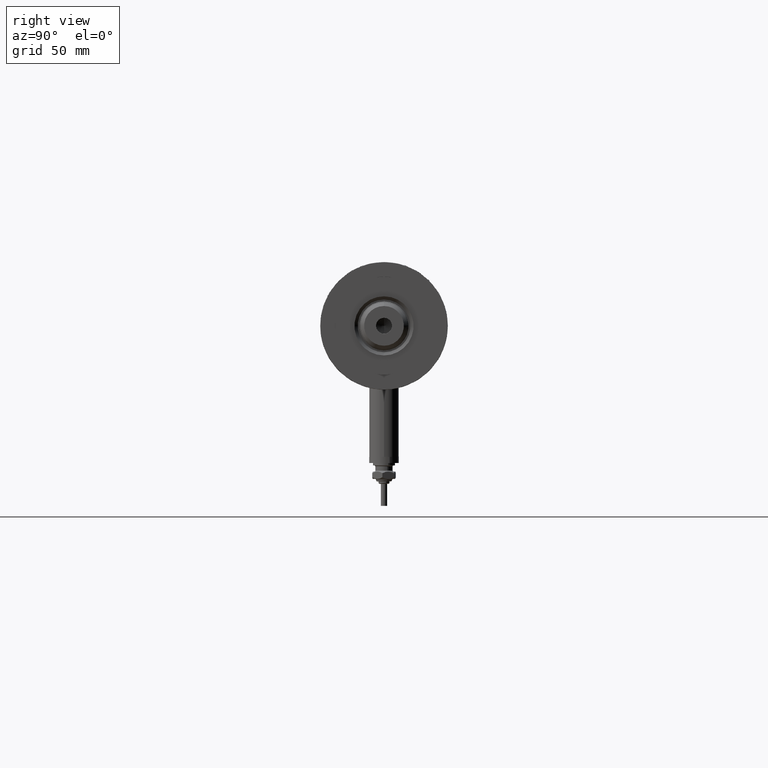
[diagram: clean part render]
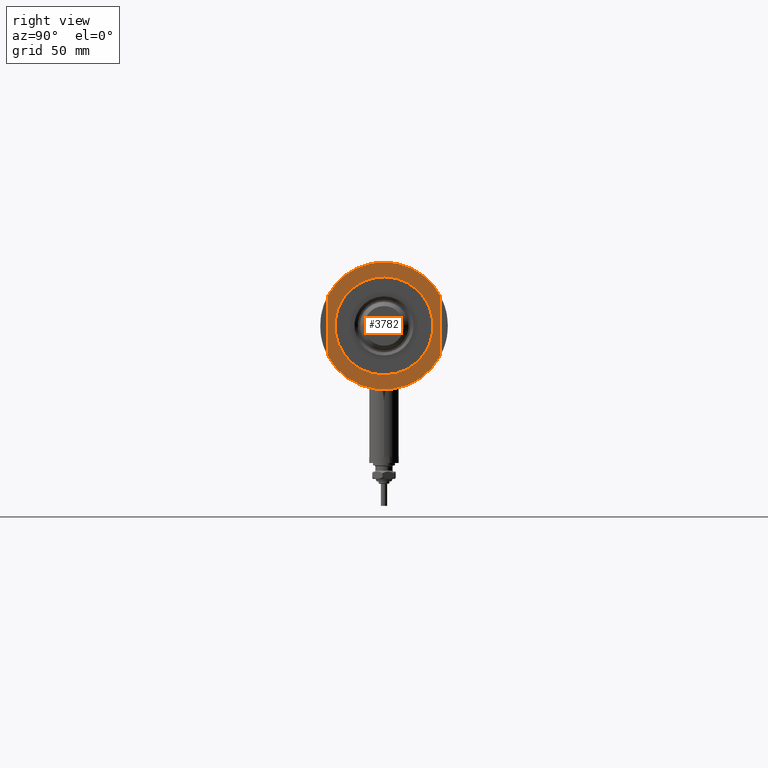
[diagram: same view with one face highlighted and labeled with its STEP entity id]
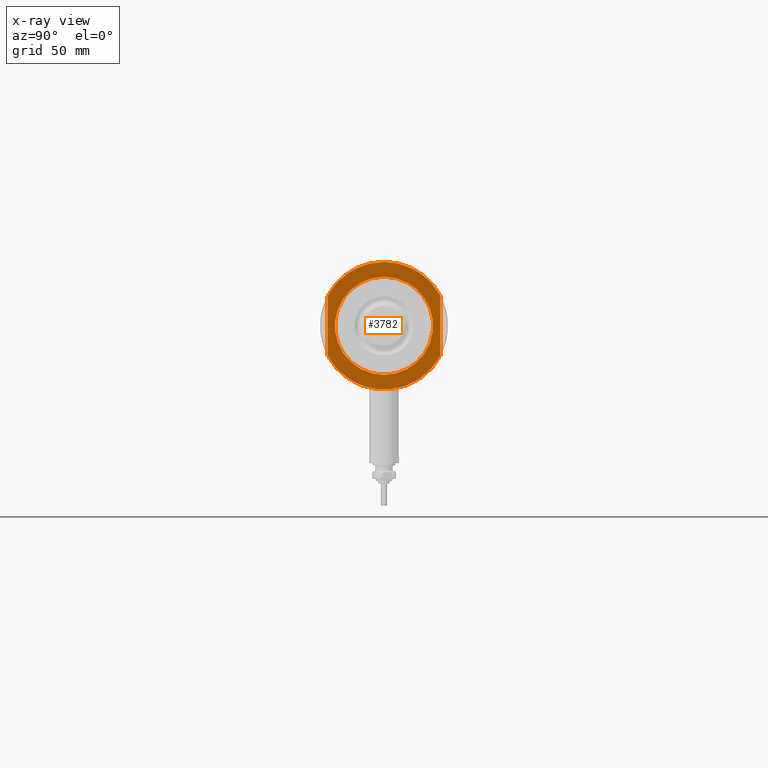
[diagram: x-ray of the same camera — body ghosted, the highlighted face saturated]
A machine part, right view. The second image highlights one B-rep face of the part: STEP entity #3782.
The next image is the same camera in x-ray: the body ghosted, the highlighted face saturated — about 0% of this face is hidden behind the body in this view.
In plain terms, the highlighted planar face has unit normal (1, 0, -0).
Its self-contained STEP definition (entity closure, byte-faithful):
#70 = DIRECTION ( 'NONE',  ( 0.000000000000000000, 0.000000000000000000, 1.000000000000000000 ) ) ;
#148 = AXIS2_PLACEMENT_3D ( 'NONE', #6233, #1840, #4787 ) ;
#535 = EDGE_LOOP ( 'NONE', ( #5057, #1143, #2914, #3333, #3971 ) ) ;
#577 = FACE_BOUND ( 'NONE', #3600, .T. ) ;
#750 = LINE ( 'NONE', #6057, #5325 ) ;
#935 = EDGE_CURVE ( 'NONE', #2356, #5743, #750, .T. ) ;
#996 = AXIS2_PLACEMENT_3D ( 'NONE', #1892, #4804, #5413 ) ;
#1053 = EDGE_CURVE ( 'NONE', #6268, #1194, #1349, .T. ) ;
#1124 = EDGE_CURVE ( 'NONE', #5229, #2757, #6042, .T. ) ;
#1143 = ORIENTED_EDGE ( 'NONE', *, *, #4327, .T. ) ;
#1149 = CARTESIAN_POINT ( 'NONE',  ( -12.12435565298214613, 23.00000000000000355, 15.50000000000000000 ) ) ;
#1194 = VERTEX_POINT ( 'NONE', #5869 ) ;
#1250 = AXIS2_PLACEMENT_3D ( 'NONE', #1822, #3773, #2393 ) ;
#1258 = VERTEX_POINT ( 'NONE', #4528 ) ;
#1349 = CIRCLE ( 'NONE', #1250, 26.00000000000000355 ) ;
#1429 = CARTESIAN_POINT ( 'NONE',  ( -12.12435565298215145, 23.00000000000000355, 15.50000000000000000 ) ) ;
#1458 = DIRECTION ( 'NONE',  ( 0.000000000000000000, 0.000000000000000000, 1.000000000000000000 ) ) ;
#1625 = EDGE_CURVE ( 'NONE', #1194, #5743, #2168, .T. ) ;
#1822 = CARTESIAN_POINT ( 'NONE',  ( 0.000000000000000000, 0.000000000000000000, 15.50000000000000000 ) ) ;
#1840 = DIRECTION ( 'NONE',  ( -0.000000000000000000, -0.000000000000000000, -1.000000000000000000 ) ) ;
#1852 = CARTESIAN_POINT ( 'NONE',  ( -20.00000000000000000, 2.449293598294706513E-15, 15.50000000000000000 ) ) ;
#1866 = CARTESIAN_POINT ( 'NONE',  ( 0.000000000000000000, 0.000000000000000000, 15.50000000000000000 ) ) ;
#1892 = CARTESIAN_POINT ( 'NONE',  ( 0.000000000000000000, 0.000000000000000000, 15.50000000000000000 ) ) ;
#1965 = DIRECTION ( 'NONE',  ( 1.000000000000000000, 0.000000000000000000, 0.000000000000000000 ) ) ;
#2136 = CARTESIAN_POINT ( 'NONE',  ( 0.000000000000000000, 0.000000000000000000, 15.50000000000000000 ) ) ;
#2158 = VECTOR ( 'NONE', #4270, 1000.000000000000000 ) ;
#2168 = CIRCLE ( 'NONE', #2671, 26.00000000000000355 ) ;
#2356 = VERTEX_POINT ( 'NONE', #3245 ) ;
#2393 = DIRECTION ( 'NONE',  ( 1.000000000000000000, 0.000000000000000000, 0.000000000000000000 ) ) ;
#2488 = EDGE_CURVE ( 'NONE', #2757, #5229, #4941, .T. ) ;
#2503 = DIRECTION ( 'NONE',  ( -0.000000000000000000, -0.000000000000000000, -1.000000000000000000 ) ) ;
#2671 = AXIS2_PLACEMENT_3D ( 'NONE', #1866, #1458, #6287 ) ;
#2757 = VERTEX_POINT ( 'NONE', #5236 ) ;
#2914 = ORIENTED_EDGE ( 'NONE', *, *, #6171, .F. ) ;
#3245 = CARTESIAN_POINT ( 'NONE',  ( 12.12435565298215323, -22.99999999999999645, 15.50000000000000000 ) ) ;
#3304 = LINE ( 'NONE', #1429, #2158 ) ;
#3333 = ORIENTED_EDGE ( 'NONE', *, *, #1053, .T. ) ;
#3451 = ORIENTED_EDGE ( 'NONE', *, *, #1124, .T. ) ;
#3546 = FACE_OUTER_BOUND ( 'NONE', #535, .T. ) ;
#3600 = EDGE_LOOP ( 'NONE', ( #5555, #3451 ) ) ;
#3744 = CIRCLE ( 'NONE', #996, 26.00000000000000355 ) ;
#3773 = DIRECTION ( 'NONE',  ( 0.000000000000000000, 0.000000000000000000, 1.000000000000000000 ) ) ;
#3782 = ADVANCED_FACE ( 'NONE', ( #577, #3546 ), #4924, .T. ) ;
#3971 = ORIENTED_EDGE ( 'NONE', *, *, #1625, .T. ) ;
#4133 = DIRECTION ( 'NONE',  ( -1.000000000000000000, -0.000000000000000000, -0.000000000000000000 ) ) ;
#4270 = DIRECTION ( 'NONE',  ( 1.000000000000000000, 0.000000000000000000, 0.000000000000000000 ) ) ;
#4327 = EDGE_CURVE ( 'NONE', #2356, #1258, #3744, .T. ) ;
#4504 = DIRECTION ( 'NONE',  ( 1.000000000000000000, 0.000000000000000000, -0.000000000000000000 ) ) ;
#4528 = CARTESIAN_POINT ( 'NONE',  ( 12.12435565298214790, 23.00000000000000355, 15.50000000000000000 ) ) ;
#4787 = DIRECTION ( 'NONE',  ( 1.000000000000000000, 0.000000000000000000, 0.000000000000000000 ) ) ;
#4804 = DIRECTION ( 'NONE',  ( 0.000000000000000000, 0.000000000000000000, 1.000000000000000000 ) ) ;
#4924 = PLANE ( 'NONE',  #5886 ) ;
#4941 = CIRCLE ( 'NONE', #148, 20.00000000000000000 ) ;
#5057 = ORIENTED_EDGE ( 'NONE', *, *, #935, .F. ) ;
#5229 = VERTEX_POINT ( 'NONE', #1852 ) ;
#5236 = CARTESIAN_POINT ( 'NONE',  ( 20.00000000000000000, 0.000000000000000000, 15.50000000000000000 ) ) ;
#5325 = VECTOR ( 'NONE', #4133, 1000.000000000000000 ) ;
#5367 = CARTESIAN_POINT ( 'NONE',  ( -12.12435565298215323, -22.99999999999999645, 15.50000000000000000 ) ) ;
#5413 = DIRECTION ( 'NONE',  ( 1.000000000000000000, 0.000000000000000000, 0.000000000000000000 ) ) ;
#5555 = ORIENTED_EDGE ( 'NONE', *, *, #2488, .T. ) ;
#5734 = AXIS2_PLACEMENT_3D ( 'NONE', #5776, #2503, #1965 ) ;
#5743 = VERTEX_POINT ( 'NONE', #5367 ) ;
#5776 = CARTESIAN_POINT ( 'NONE',  ( 0.000000000000000000, 0.000000000000000000, 15.50000000000000000 ) ) ;
#5869 = CARTESIAN_POINT ( 'NONE',  ( -26.00000000000000355, 0.000000000000000000, 15.50000000000000000 ) ) ;
#5886 = AXIS2_PLACEMENT_3D ( 'NONE', #2136, #70, #4504 ) ;
#6042 = CIRCLE ( 'NONE', #5734, 20.00000000000000000 ) ;
#6057 = CARTESIAN_POINT ( 'NONE',  ( -12.12435565298215145, -22.99999999999999645, 15.50000000000000000 ) ) ;
#6171 = EDGE_CURVE ( 'NONE', #6268, #1258, #3304, .T. ) ;
#6233 = CARTESIAN_POINT ( 'NONE',  ( 0.000000000000000000, 0.000000000000000000, 15.50000000000000000 ) ) ;
#6268 = VERTEX_POINT ( 'NONE', #1149 ) ;
#6287 = DIRECTION ( 'NONE',  ( 1.000000000000000000, 0.000000000000000000, 0.000000000000000000 ) ) ;